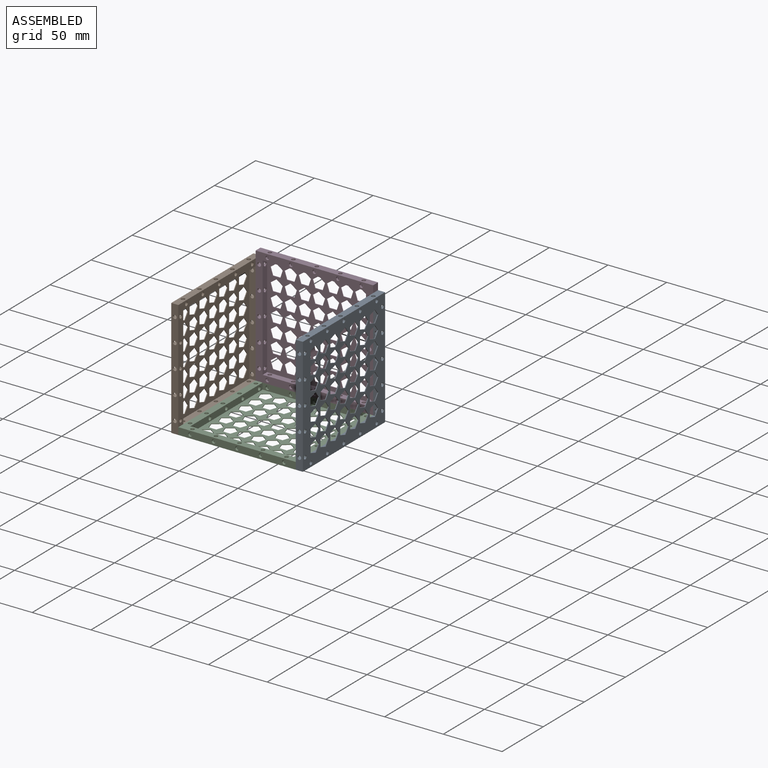
[diagram: assembled view]
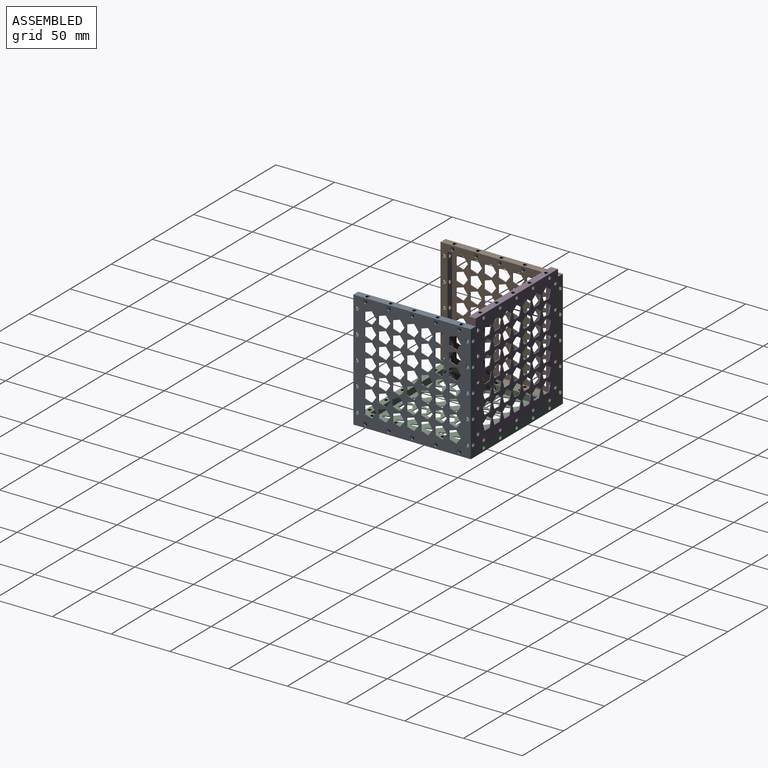
[diagram: assembled view, second angle]
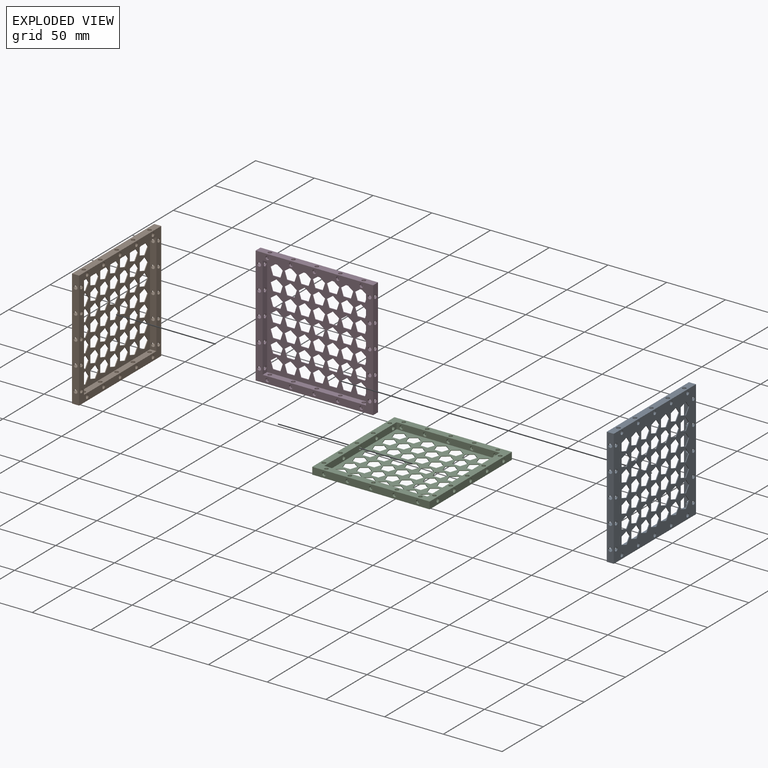
[diagram: exploded view]
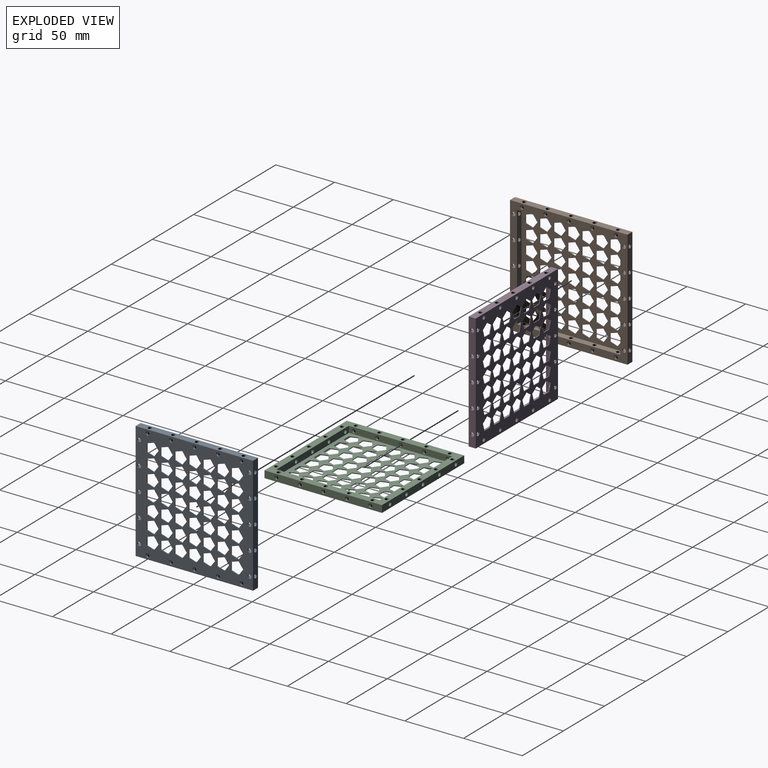
[diagram: exploded view, second angle]
ASSEMBLY  parts=4 mates=3
PART A: 336 faces, bbox 100x100x6 mm
  f0: plane 100x100mm, normal (0,0,-1), area 6234.6mm2, adj f32,f33,f34,f35,f41,f42,f43,f44
  f1: plane 100x100mm, normal (0,0,1), area 2095.2mm2, adj f32,f33,f34,f35,f36,f37,f38,f39
  f2: cylinder r=1.6mm len=3.2mm, axis (1,0,0), area 19.9mm2, adj f35,f334,f335
  f3: cylinder r=1.6mm len=3.2mm, axis (1,0,0), area 19.9mm2, adj f35,f332,f333
  f4: cylinder r=1.6mm len=3.2mm, axis (1,0,0), area 19.9mm2, adj f35,f330,f331
  f5: cylinder r=1.6mm len=3.2mm, axis (1,0,0), area 19.9mm2, adj f35,f328,f329
  f6: cylinder r=1.6mm len=3.2mm, axis (1,0,0), area 19.9mm2, adj f35,f326,f327
  f7: cylinder r=1.6mm len=3.2mm, axis (1,0,0), area 19.9mm2, adj f33,f324,f325
  f8: cylinder r=1.6mm len=3.2mm, axis (1,0,0), area 19.9mm2, adj f37,f324,f325
  f9: cylinder r=1.6mm len=3.2mm, axis (1,0,0), area 19.9mm2, adj f33,f322,f323
  f10: cylinder r=1.6mm len=3.2mm, axis (1,0,0), area 19.9mm2, adj f37,f322,f323
  f11: cylinder r=1.6mm len=3.2mm, axis (1,0,0), area 19.9mm2, adj f33,f320,f321
  f12: cylinder r=1.6mm len=3.2mm, axis (1,0,0), area 19.9mm2, adj f37,f320,f321
  f13: cylinder r=1.6mm len=3.2mm, axis (1,0,0), area 19.9mm2, adj f33,f318,f319
  f14: cylinder r=1.6mm len=3.2mm, axis (1,0,0), area 19.9mm2, adj f37,f318,f319
  f15: cylinder r=1.6mm len=3.2mm, axis (1,0,0), area 19.9mm2, adj f33,f316,f317
  f16: cylinder r=1.6mm len=3.2mm, axis (1,0,0), area 19.9mm2, adj f37,f316,f317
  f17: cylinder r=1.6mm len=3.2mm, axis (0,-1,0), area 19.9mm2, adj f32,f314,f315
  f18: cylinder r=1.6mm len=3.2mm, axis (0,-1,0), area 19.9mm2, adj f38,f314,f315
  f19: cylinder r=1.6mm len=3.2mm, axis (0,-1,0), area 19.9mm2, adj f32,f312,f313
  f20: cylinder r=1.6mm len=3.2mm, axis (0,-1,0), area 19.9mm2, adj f38,f312,f313
  f21: cylinder r=1.6mm len=3.2mm, axis (0,-1,0), area 19.9mm2, adj f32,f310,f311
  f22: cylinder r=1.6mm len=3.2mm, axis (0,-1,0), area 19.9mm2, adj f38,f310,f311
  f23: cylinder r=1.6mm len=3.2mm, axis (0,-1,0), area 19.9mm2, adj f32,f308,f309
  f24: cylinder r=1.6mm len=3.2mm, axis (0,-1,0), area 19.9mm2, adj f38,f308,f309
  f25: cylinder r=1.6mm len=3.2mm, axis (0,-1,0), area 19.9mm2, adj f32,f306,f307
  f26: cylinder r=1.6mm len=3.2mm, axis (0,-1,0), area 19.9mm2, adj f38,f306,f307
  f27: cylinder r=1.6mm len=3.2mm, axis (0,-1,0), area 19.9mm2, adj f34,f304,f305
  f28: cylinder r=1.6mm len=3.2mm, axis (0,-1,0), area 19.9mm2, adj f34,f302,f303
  f29: cylinder r=1.6mm len=3.2mm, axis (0,-1,0), area 19.9mm2, adj f34,f300,f301
  f30: cylinder r=1.6mm len=3.2mm, axis (0,-1,0), area 19.9mm2, adj f34,f298,f299
  f31: cylinder r=1.6mm len=3.2mm, axis (0,-1,0), area 19.9mm2, adj f34,f296,f297
  f32: plane 100x6mm, normal (0,1,0), area 559.8mm2, adj f0,f1,f17,f19,f21,f23,f25,f33
  f33: plane 100x6mm, normal (-1,0,0), area 559.8mm2, adj f0,f1,f7,f9,f11,f13,f15,f32
  f34: plane 100x6mm, normal (0,-1,0), area 559.8mm2, adj f0,f1,f27,f28,f29,f30,f31,f33
  f35: plane 100x6mm, normal (1,0,0), area 559.8mm2, adj f0,f1,f2,f3,f4,f5,f6,f32
  f36: plane 88x5.4mm, normal (0,1,0), area 435mm2, adj f1,f37,f39,f40,f291,f292,f293,f294
  f37: plane 88x5.4mm, normal (1,0,0), area 435mm2, adj f1,f8,f10,f12,f14,f16,f36,f38
  f38: plane 88x5.4mm, normal (0,-1,0), area 435mm2, adj f1,f18,f20,f22,f24,f26,f37,f39
  f39: plane 88x5.4mm, normal (-1,0,0), area 435mm2, adj f1,f36,f38,f40,f286,f287,f288,f289
  f40: plane 88x88mm, normal (0,0,1), area 4139.4mm2, adj f36,f37,f38,f39,f41,f42,f43,f44
  f41: plane 6.22x2.02mm, normal (-0.95,0.31,0), area 3.9mm2, adj f0,f40,f42,f45
  f42: plane 5.29x3.84mm, normal (-0.59,-0.81,0), area 3.9mm2, adj f0,f40,f41,f43
  f43: plane 5.29x3.84mm, normal (0.59,-0.81,0), area 3.9mm2, adj f0,f40,f42,f44
  f44: plane 6.22x2.02mm, normal (0.95,0.31,0), area 3.9mm2, adj f0,f40,f43,f45
  f45: plane 6.54x0.6mm, normal (0,1,0), area 3.9mm2, adj f0,f40,f41,f44
  f46: plane 5.29x3.84mm, normal (-0.59,-0.81,0), area 3.9mm2, adj f0,f40,f47,f50
  f47: plane 5.29x3.84mm, normal (0.59,-0.81,0), area 3.9mm2, adj f0,f40,f46,f48
  f48: plane 6.22x2.02mm, normal (0.95,0.31,0), area 3.9mm2, adj f0,f40,f47,f49
  f49: plane 6.54x0.6mm, normal (0,1,0), area 3.9mm2, adj f0,f40,f48,f50
  f50: plane 6.22x2.02mm, normal (-0.95,0.31,0), area 3.9mm2, adj f0,f40,f46,f49
  f51: plane 5.29x3.84mm, normal (-0.59,-0.81,0), area 3.9mm2, adj f0,f40,f52,f55
  f52: plane 5.29x3.84mm, normal (0.59,-0.81,0), area 3.9mm2, adj f0,f40,f51,f53
  f53: plane 6.22x2.02mm, normal (0.95,0.31,0), area 3.9mm2, adj f0,f40,f52,f54
  f54: plane 6.54x0.6mm, normal (0,1,0), area 3.9mm2, adj f0,f40,f53,f55
  f55: plane 6.22x2.02mm, normal (-0.95,0.31,0), area 3.9mm2, adj f0,f40,f51,f54
  f56: plane 5.29x3.84mm, normal (-0.59,-0.81,0), area 3.9mm2, adj f0,f40,f57,f60
  f57: plane 5.29x3.84mm, normal (0.59,-0.81,0), area 3.9mm2, adj f0,f40,f56,f58
  f58: plane 6.22x2.02mm, normal (0.95,0.31,0), area 3.9mm2, adj f0,f40,f57,f59
  f59: plane 6.54x0.6mm, normal (0,1,0), area 3.9mm2, adj f0,f40,f58,f60
  f60: plane 6.22x2.02mm, normal (-0.95,0.31,0), area 3.9mm2, adj f0,f40,f56,f59
  f61: plane 5.29x3.84mm, normal (-0.59,-0.81,0), area 3.9mm2, adj f0,f40,f62,f65
  f62: plane 5.29x3.84mm, normal (0.59,-0.81,0), area 3.9mm2, adj f0,f40,f61,f63
  f63: plane 6.22x2.02mm, normal (0.95,0.31,0), area 3.9mm2, adj f0,f40,f62,f64
  f64: plane 6.54x0.6mm, normal (0,1,0), area 3.9mm2, adj f0,f40,f63,f65
  f65: plane 6.22x2.02mm, normal (-0.95,0.31,0), area 3.9mm2, adj f0,f40,f61,f64
  f66: plane 5.29x3.84mm, normal (-0.59,-0.81,0), area 3.9mm2, adj f0,f40,f67,f70
  f67: plane 5.29x3.84mm, normal (0.59,-0.81,0), area 3.9mm2, adj f0,f40,f66,f68
  f68: plane 6.22x2.02mm, normal (0.95,0.31,0), area 3.9mm2, adj f0,f40,f67,f69
  f69: plane 6.54x0.6mm, normal (0,1,0), area 3.9mm2, adj f0,f40,f68,f70
  f70: plane 6.22x2.02mm, normal (-0.95,0.31,0), area 3.9mm2, adj f0,f40,f66,f69
  f71: plane 5.29x3.84mm, normal (-0.59,-0.81,0), area 3.9mm2, adj f0,f40,f72,f75
  f72: plane 5.29x3.84mm, normal (0.59,-0.81,0), area 3.9mm2, adj f0,f40,f71,f73
  f73: plane 6.22x2.02mm, normal (0.95,0.31,0), area 3.9mm2, adj f0,f40,f72,f74
  f74: plane 6.54x0.6mm, normal (0,1,0), area 3.9mm2, adj f0,f40,f73,f75
  f75: plane 6.22x2.02mm, normal (-0.95,0.31,0), area 3.9mm2, adj f0,f40,f71,f74
  f76: plane 5.29x3.84mm, normal (-0.59,-0.81,0), area 3.9mm2, adj f0,f40,f77,f80
  f77: plane 5.29x3.84mm, normal (0.59,-0.81,0), area 3.9mm2, adj f0,f40,f76,f78
  f78: plane 6.22x2.02mm, normal (0.95,0.31,0), area 3.9mm2, adj f0,f40,f77,f79
  f79: plane 6.54x0.6mm, normal (0,1,0), area 3.9mm2, adj f0,f40,f78,f80
  f80: plane 6.22x2.02mm, normal (-0.95,0.31,0), area 3.9mm2, adj f0,f40,f76,f79
  f81: plane 5.29x3.84mm, normal (-0.59,-0.81,0), area 3.9mm2, adj f0,f40,f82,f85
  f82: plane 5.29x3.84mm, normal (0.59,-0.81,0), area 3.9mm2, adj f0,f40,f81,f83
  f83: plane 6.22x2.02mm, normal (0.95,0.31,0), area 3.9mm2, adj f0,f40,f82,f84
  f84: plane 6.54x0.6mm, normal (0,1,0), area 3.9mm2, adj f0,f40,f83,f85
  f85: plane 6.22x2.02mm, normal (-0.95,0.31,0), area 3.9mm2, adj f0,f40,f81,f84
  f86: plane 5.29x3.84mm, normal (-0.59,-0.81,0), area 3.9mm2, adj f0,f40,f87,f90
  f87: plane 5.29x3.84mm, normal (0.59,-0.81,0), area 3.9mm2, adj f0,f40,f86,f88
  f88: plane 6.22x2.02mm, normal (0.95,0.31,0), area 3.9mm2, adj f0,f40,f87,f89
  f89: plane 6.54x0.6mm, normal (0,1,0), area 3.9mm2, adj f0,f40,f88,f90
  f90: plane 6.22x2.02mm, normal (-0.95,0.31,0), area 3.9mm2, adj f0,f40,f86,f89
  f91: plane 5.29x3.84mm, normal (-0.59,-0.81,0), area 3.9mm2, adj f0,f40,f92,f95
  f92: plane 5.29x3.84mm, normal (0.59,-0.81,0), area 3.9mm2, adj f0,f40,f91,f93
  f93: plane 6.22x2.02mm, normal (0.95,0.31,0), area 3.9mm2, adj f0,f40,f92,f94
  f94: plane 6.54x0.6mm, normal (0,1,0), area 3.9mm2, adj f0,f40,f93,f95
  f95: plane 6.22x2.02mm, normal (-0.95,0.31,0), area 3.9mm2, adj f0,f40,f91,f94
  f96: plane 5.29x3.84mm, normal (-0.59,-0.81,0), area 3.9mm2, adj f0,f40,f97,f100
  f97: plane 5.29x3.84mm, normal (0.59,-0.81,0), area 3.9mm2, adj f0,f40,f96,f98
  f98: plane 6.22x2.02mm, normal (0.95,0.31,0), area 3.9mm2, adj f0,f40,f97,f99
  f99: plane 6.54x0.6mm, normal (0,1,0), area 3.9mm2, adj f0,f40,f98,f100
  f100: plane 6.22x2.02mm, normal (-0.95,0.31,0), area 3.9mm2, adj f0,f40,f96,f99
  f101: plane 5.29x3.84mm, normal (-0.59,-0.81,0), area 3.9mm2, adj f0,f40,f102,f105
  f102: plane 5.29x3.84mm, normal (0.59,-0.81,0), area 3.9mm2, adj f0,f40,f101,f103
  f103: plane 6.22x2.02mm, normal (0.95,0.31,0), area 3.9mm2, adj f0,f40,f102,f104
  f104: plane 6.54x0.6mm, normal (0,1,0), area 3.9mm2, adj f0,f40,f103,f105
  f105: plane 6.22x2.02mm, normal (-0.95,0.31,0), area 3.9mm2, adj f0,f40,f101,f104
  f106: plane 5.29x3.84mm, normal (-0.59,-0.81,0), area 3.9mm2, adj f0,f40,f107,f110
  f107: plane 5.29x3.84mm, normal (0.59,-0.81,0), area 3.9mm2, adj f0,f40,f106,f108
  f108: plane 6.22x2.02mm, normal (0.95,0.31,0), area 3.9mm2, adj f0,f40,f107,f109
  f109: plane 6.54x0.6mm, normal (0,1,0), area 3.9mm2, adj f0,f40,f108,f110
  f110: plane 6.22x2.02mm, normal (-0.95,0.31,0), area 3.9mm2, adj f0,f40,f106,f109
  f111: plane 5.29x3.84mm, normal (-0.59,-0.81,0), area 3.9mm2, adj f0,f40,f112,f115
  f112: plane 5.29x3.84mm, normal (0.59,-0.81,0), area 3.9mm2, adj f0,f40,f111,f113
  f113: plane 6.22x2.02mm, normal (0.95,0.31,0), area 3.9mm2, adj f0,f40,f112,f114
  f114: plane 6.54x0.6mm, normal (0,1,0), area 3.9mm2, adj f0,f40,f113,f115
  f115: plane 6.22x2.02mm, normal (-0.95,0.31,0), area 3.9mm2, adj f0,f40,f111,f114
  f116: plane 5.29x3.84mm, normal (-0.59,-0.81,0), area 3.9mm2, adj f0,f40,f117,f120
  f117: plane 5.29x3.84mm, normal (0.59,-0.81,0), area 3.9mm2, adj f0,f40,f116,f118
  f118: plane 6.22x2.02mm, normal (0.95,0.31,0), area 3.9mm2, adj f0,f40,f117,f119
  f119: plane 6.54x0.6mm, normal (0,1,0), area 3.9mm2, adj f0,f40,f118,f120
  f120: plane 6.22x2.02mm, normal (-0.95,0.31,0), area 3.9mm2, adj f0,f40,f116,f119
  f121: plane 5.29x3.84mm, normal (-0.59,-0.81,0), area 3.9mm2, adj f0,f40,f122,f125
  f122: plane 5.29x3.84mm, normal (0.59,-0.81,0), area 3.9mm2, adj f0,f40,f121,f123
  f123: plane 6.22x2.02mm, normal (0.95,0.31,0), area 3.9mm2, adj f0,f40,f122,f124
  f124: plane 6.54x0.6mm, normal (0,1,0), area 3.9mm2, adj f0,f40,f123,f125
  f125: plane 6.22x2.02mm, normal (-0.95,0.31,0), area 3.9mm2, adj f0,f40,f121,f124
  f126: plane 5.29x3.84mm, normal (-0.59,-0.81,0), area 3.9mm2, adj f0,f40,f127,f130
  f127: plane 5.29x3.84mm, normal (0.59,-0.81,0), area 3.9mm2, adj f0,f40,f126,f128
  f128: plane 6.22x2.02mm, normal (0.95,0.31,0), area 3.9mm2, adj f0,f40,f127,f129
  f129: plane 6.54x0.6mm, normal (0,1,0), area 3.9mm2, adj f0,f40,f128,f130
  f130: plane 6.22x2.02mm, normal (-0.95,0.31,0), area 3.9mm2, adj f0,f40,f126,f129
  f131: plane 5.29x3.84mm, normal (-0.59,-0.81,0), area 3.9mm2, adj f0,f40,f132,f135
  f132: plane 5.29x3.84mm, normal (0.59,-0.81,0), area 3.9mm2, adj f0,f40,f131,f133
  f133: plane 6.22x2.02mm, normal (0.95,0.31,0), area 3.9mm2, adj f0,f40,f132,f134
  f134: plane 6.54x0.6mm, normal (0,1,0), area 3.9mm2, adj f0,f40,f133,f135
  f135: plane 6.22x2.02mm, normal (-0.95,0.31,0), area 3.9mm2, adj f0,f40,f131,f134
  f136: plane 5.29x3.84mm, normal (-0.59,-0.81,0), area 3.9mm2, adj f0,f40,f137,f140
  f137: plane 5.29x3.84mm, normal (0.59,-0.81,0), area 3.9mm2, adj f0,f40,f136,f138
  f138: plane 6.22x2.02mm, normal (0.95,0.31,0), area 3.9mm2, adj f0,f40,f137,f139
  f139: plane 6.54x0.6mm, normal (0,1,0), area 3.9mm2, adj f0,f40,f138,f140
  f140: plane 6.22x2.02mm, normal (-0.95,0.31,0), area 3.9mm2, adj f0,f40,f136,f139
  f141: plane 5.29x3.84mm, normal (-0.59,-0.81,0), area 3.9mm2, adj f0,f40,f142,f145
  f142: plane 5.29x3.84mm, normal (0.59,-0.81,0), area 3.9mm2, adj f0,f40,f141,f143
  f143: plane 6.22x2.02mm, normal (0.95,0.31,0), area 3.9mm2, adj f0,f40,f142,f144
  f144: plane 6.54x0.6mm, normal (0,1,0), area 3.9mm2, adj f0,f40,f143,f145
  f145: plane 6.22x2.02mm, normal (-0.95,0.31,0), area 3.9mm2, adj f0,f40,f141,f144
  f146: plane 5.29x3.84mm, normal (-0.59,-0.81,0), area 3.9mm2, adj f0,f40,f147,f150
  f147: plane 5.29x3.84mm, normal (0.59,-0.81,0), area 3.9mm2, adj f0,f40,f146,f148
  f148: plane 6.22x2.02mm, normal (0.95,0.31,0), area 3.9mm2, adj f0,f40,f147,f149
  f149: plane 6.54x0.6mm, normal (0,1,0), area 3.9mm2, adj f0,f40,f148,f150
  f150: plane 6.22x2.02mm, normal (-0.95,0.31,0), area 3.9mm2, adj f0,f40,f146,f149
  f151: plane 5.29x3.84mm, normal (-0.59,-0.81,0), area 3.9mm2, adj f0,f40,f152,f155
  f152: plane 5.29x3.84mm, normal (0.59,-0.81,0), area 3.9mm2, adj f0,f40,f151,f153
  f153: plane 6.22x2.02mm, normal (0.95,0.31,0), area 3.9mm2, adj f0,f40,f152,f154
  f154: plane 6.54x0.6mm, normal (0,1,0), area 3.9mm2, adj f0,f40,f153,f155
  f155: plane 6.22x2.02mm, normal (-0.95,0.31,0), area 3.9mm2, adj f0,f40,f151,f154
  f156: plane 5.29x3.84mm, normal (-0.59,-0.81,0), area 3.9mm2, adj f0,f40,f157,f160
  f157: plane 5.29x3.84mm, normal (0.59,-0.81,0), area 3.9mm2, adj f0,f40,f156,f158
  f158: plane 6.22x2.02mm, normal (0.95,0.31,0), area 3.9mm2, adj f0,f40,f157,f159
  f159: plane 6.54x0.6mm, normal (0,1,0), area 3.9mm2, adj f0,f40,f158,f160
  f160: plane 6.22x2.02mm, normal (-0.95,0.31,0), area 3.9mm2, adj f0,f40,f156,f159
  f161: plane 5.29x3.84mm, normal (-0.59,-0.81,0), area 3.9mm2, adj f0,f40,f162,f165
  f162: plane 5.29x3.84mm, normal (0.59,-0.81,0), area 3.9mm2, adj f0,f40,f161,f163
  f163: plane 6.22x2.02mm, normal (0.95,0.31,0), area 3.9mm2, adj f0,f40,f162,f164
  f164: plane 6.54x0.6mm, normal (0,1,0), area 3.9mm2, adj f0,f40,f163,f165
  f165: plane 6.22x2.02mm, normal (-0.95,0.31,0), area 3.9mm2, adj f0,f40,f161,f164
  f166: plane 5.29x3.84mm, normal (-0.59,-0.81,0), area 3.9mm2, adj f0,f40,f167,f170
  f167: plane 5.29x3.84mm, normal (0.59,-0.81,0), area 3.9mm2, adj f0,f40,f166,f168
  f168: plane 6.22x2.02mm, normal (0.95,0.31,0), area 3.9mm2, adj f0,f40,f167,f169
  f169: plane 6.54x0.6mm, normal (0,1,0), area 3.9mm2, adj f0,f40,f168,f170
  f170: plane 6.22x2.02mm, normal (-0.95,0.31,0), area 3.9mm2, adj f0,f40,f166,f169
  f171: plane 5.29x3.84mm, normal (-0.59,-0.81,0), area 3.9mm2, adj f0,f40,f172,f175
  f172: plane 5.29x3.84mm, normal (0.59,-0.81,0), area 3.9mm2, adj f0,f40,f171,f173
  f173: plane 6.22x2.02mm, normal (0.95,0.31,0), area 3.9mm2, adj f0,f40,f172,f174
  f174: plane 6.54x0.6mm, normal (0,1,0), area 3.9mm2, adj f0,f40,f173,f175
  f175: plane 6.22x2.02mm, normal (-0.95,0.31,0), area 3.9mm2, adj f0,f40,f171,f174
  f176: plane 5.29x3.84mm, normal (-0.59,-0.81,0), area 3.9mm2, adj f0,f40,f177,f180
  f177: plane 5.29x3.84mm, normal (0.59,-0.81,0), area 3.9mm2, adj f0,f40,f176,f178
  f178: plane 6.22x2.02mm, normal (0.95,0.31,0), area 3.9mm2, adj f0,f40,f177,f179
  f179: plane 6.54x0.6mm, normal (0,1,0), area 3.9mm2, adj f0,f40,f178,f180
  f180: plane 6.22x2.02mm, normal (-0.95,0.31,0), area 3.9mm2, adj f0,f40,f176,f179
  f181: plane 5.29x3.84mm, normal (-0.59,-0.81,0), area 3.9mm2, adj f0,f40,f182,f185
  f182: plane 5.29x3.84mm, normal (0.59,-0.81,0), area 3.9mm2, adj f0,f40,f181,f183
  f183: plane 6.22x2.02mm, normal (0.95,0.31,0), area 3.9mm2, adj f0,f40,f182,f184
  f184: plane 6.54x0.6mm, normal (0,1,0), area 3.9mm2, adj f0,f40,f183,f185
  f185: plane 6.22x2.02mm, normal (-0.95,0.31,0), area 3.9mm2, adj f0,f40,f181,f184
  f186: plane 5.29x3.84mm, normal (-0.59,-0.81,0), area 3.9mm2, adj f0,f40,f187,f190
  f187: plane 5.29x3.84mm, normal (0.59,-0.81,0), area 3.9mm2, adj f0,f40,f186,f188
  f188: plane 6.22x2.02mm, normal (0.95,0.31,0), area 3.9mm2, adj f0,f40,f187,f189
  f189: plane 6.54x0.6mm, normal (0,1,0), area 3.9mm2, adj f0,f40,f188,f190
  f190: plane 6.22x2.02mm, normal (-0.95,0.31,0), area 3.9mm2, adj f0,f40,f186,f189
  f191: plane 5.29x3.84mm, normal (-0.59,-0.81,0), area 3.9mm2, adj f0,f40,f192,f195
  f192: plane 5.29x3.84mm, normal (0.59,-0.81,0), area 3.9mm2, adj f0,f40,f191,f193
  f193: plane 6.22x2.02mm, normal (0.95,0.31,0), area 3.9mm2, adj f0,f40,f192,f194
  f194: plane 6.54x0.6mm, normal (0,1,0), area 3.9mm2, adj f0,f40,f193,f195
  f195: plane 6.22x2.02mm, normal (-0.95,0.31,0), area 3.9mm2, adj f0,f40,f191,f194
  f196: plane 5.29x3.84mm, normal (-0.59,-0.81,0), area 3.9mm2, adj f0,f40,f197,f200
  f197: plane 5.29x3.84mm, normal (0.59,-0.81,0), area 3.9mm2, adj f0,f40,f196,f198
  f198: plane 6.22x2.02mm, normal (0.95,0.31,0), area 3.9mm2, adj f0,f40,f197,f199
  f199: plane 6.54x0.6mm, normal (0,1,0), area 3.9mm2, adj f0,f40,f198,f200
  f200: plane 6.22x2.02mm, normal (-0.95,0.31,0), area 3.9mm2, adj f0,f40,f196,f199
  f201: plane 5.29x3.84mm, normal (-0.59,-0.81,0), area 3.9mm2, adj f0,f40,f202,f205
  f202: plane 5.29x3.84mm, normal (0.59,-0.81,0), area 3.9mm2, adj f0,f40,f201,f203
  f203: plane 6.22x2.02mm, normal (0.95,0.31,0), area 3.9mm2, adj f0,f40,f202,f204
  f204: plane 6.54x0.6mm, normal (0,1,0), area 3.9mm2, adj f0,f40,f203,f205
  f205: plane 6.22x2.02mm, normal (-0.95,0.31,0), area 3.9mm2, adj f0,f40,f201,f204
  f206: plane 5.29x3.84mm, normal (-0.59,-0.81,0), area 3.9mm2, adj f0,f40,f207,f210
  f207: plane 5.29x3.84mm, normal (0.59,-0.81,0), area 3.9mm2, adj f0,f40,f206,f208
  f208: plane 6.22x2.02mm, normal (0.95,0.31,0), area 3.9mm2, adj f0,f40,f207,f209
  f209: plane 6.54x0.6mm, normal (0,1,0), area 3.9mm2, adj f0,f40,f208,f210
  f210: plane 6.22x2.02mm, normal (-0.95,0.31,0), area 3.9mm2, adj f0,f40,f206,f209
  f211: plane 5.29x3.84mm, normal (-0.59,-0.81,0), area 3.9mm2, adj f0,f40,f212,f215
  f212: plane 5.29x3.84mm, normal (0.59,-0.81,0), area 3.9mm2, adj f0,f40,f211,f213
  f213: plane 6.22x2.02mm, normal (0.95,0.31,0), area 3.9mm2, adj f0,f40,f212,f214
  f214: plane 6.54x0.6mm, normal (0,1,0), area 3.9mm2, adj f0,f40,f213,f215
  f215: plane 6.22x2.02mm, normal (-0.95,0.31,0), area 3.9mm2, adj f0,f40,f211,f214
  f216: plane 5.29x3.84mm, normal (-0.59,-0.81,0), area 3.9mm2, adj f0,f40,f217,f220
  f217: plane 5.29x3.84mm, normal (0.59,-0.81,0), area 3.9mm2, adj f0,f40,f216,f218
  f218: plane 6.22x2.02mm, normal (0.95,0.31,0), area 3.9mm2, adj f0,f40,f217,f219
  f219: plane 6.54x0.6mm, normal (0,1,0), area 3.9mm2, adj f0,f40,f218,f220
  f220: plane 6.22x2.02mm, normal (-0.95,0.31,0), area 3.9mm2, adj f0,f40,f216,f219
  f221: plane 5.29x3.84mm, normal (-0.59,-0.81,0), area 3.9mm2, adj f0,f40,f222,f225
  f222: plane 5.29x3.84mm, normal (0.59,-0.81,0), area 3.9mm2, adj f0,f40,f221,f223
  f223: plane 6.22x2.02mm, normal (0.95,0.31,0), area 3.9mm2, adj f0,f40,f222,f224
  f224: plane 6.54x0.6mm, normal (0,1,0), area 3.9mm2, adj f0,f40,f223,f225
  f225: plane 6.22x2.02mm, normal (-0.95,0.31,0), area 3.9mm2, adj f0,f40,f221,f224
  f226: plane 5.29x3.84mm, normal (-0.59,-0.81,0), area 3.9mm2, adj f0,f40,f227,f230
  f227: plane 5.29x3.84mm, normal (0.59,-0.81,0), area 3.9mm2, adj f0,f40,f226,f228
  f228: plane 6.22x2.02mm, normal (0.95,0.31,0), area 3.9mm2, adj f0,f40,f227,f229
  f229: plane 6.54x0.6mm, normal (0,1,0), area 3.9mm2, adj f0,f40,f228,f230
  f230: plane 6.22x2.02mm, normal (-0.95,0.31,0), area 3.9mm2, adj f0,f40,f226,f229
  f231: plane 5.29x3.84mm, normal (-0.59,-0.81,0), area 3.9mm2, adj f0,f40,f232,f235
  f232: plane 5.29x3.84mm, normal (0.59,-0.81,0), area 3.9mm2, adj f0,f40,f231,f233
  f233: plane 6.22x2.02mm, normal (0.95,0.31,0), area 3.9mm2, adj f0,f40,f232,f234
  f234: plane 6.54x0.6mm, normal (0,1,0), area 3.9mm2, adj f0,f40,f233,f235
  f235: plane 6.22x2.02mm, normal (-0.95,0.31,0), area 3.9mm2, adj f0,f40,f231,f234
  f236: plane 5.29x3.84mm, normal (-0.59,-0.81,0), area 3.9mm2, adj f0,f40,f237,f240
  f237: plane 5.29x3.84mm, normal (0.59,-0.81,0), area 3.9mm2, adj f0,f40,f236,f238
  f238: plane 6.22x2.02mm, normal (0.95,0.31,0), area 3.9mm2, adj f0,f40,f237,f239
  f239: plane 6.54x0.6mm, normal (0,1,0), area 3.9mm2, adj f0,f40,f238,f240
  f240: plane 6.22x2.02mm, normal (-0.95,0.31,0), area 3.9mm2, adj f0,f40,f236,f239
  f241: plane 5.29x3.84mm, normal (-0.59,-0.81,0), area 3.9mm2, adj f0,f40,f242,f245
  f242: plane 5.29x3.84mm, normal (0.59,-0.81,0), area 3.9mm2, adj f0,f40,f241,f243
  f243: plane 6.22x2.02mm, normal (0.95,0.31,0), area 3.9mm2, adj f0,f40,f242,f244
  f244: plane 6.54x0.6mm, normal (0,1,0), area 3.9mm2, adj f0,f40,f243,f245
  f245: plane 6.22x2.02mm, normal (-0.95,0.31,0), area 3.9mm2, adj f0,f40,f241,f244
  f246: plane 5.29x3.84mm, normal (-0.59,-0.81,0), area 3.9mm2, adj f0,f40,f247,f250
  f247: plane 5.29x3.84mm, normal (0.59,-0.81,0), area 3.9mm2, adj f0,f40,f246,f248
  f248: plane 6.22x2.02mm, normal (0.95,0.31,0), area 3.9mm2, adj f0,f40,f247,f249
  f249: plane 6.54x0.6mm, normal (0,1,0), area 3.9mm2, adj f0,f40,f248,f250
  f250: plane 6.22x2.02mm, normal (-0.95,0.31,0), area 3.9mm2, adj f0,f40,f246,f249
  f251: plane 5.29x3.84mm, normal (-0.59,-0.81,0), area 3.9mm2, adj f0,f40,f252,f255
  f252: plane 5.29x3.84mm, normal (0.59,-0.81,0), area 3.9mm2, adj f0,f40,f251,f253
  f253: plane 6.22x2.02mm, normal (0.95,0.31,0), area 3.9mm2, adj f0,f40,f252,f254
  f254: plane 6.54x0.6mm, normal (0,1,0), area 3.9mm2, adj f0,f40,f253,f255
  f255: plane 6.22x2.02mm, normal (-0.95,0.31,0), area 3.9mm2, adj f0,f40,f251,f254
  f256: plane 5.29x3.84mm, normal (-0.59,-0.81,0), area 3.9mm2, adj f0,f40,f257,f260
  f257: plane 5.29x3.84mm, normal (0.59,-0.81,0), area 3.9mm2, adj f0,f40,f256,f258
  f258: plane 6.22x2.02mm, normal (0.95,0.31,0), area 3.9mm2, adj f0,f40,f257,f259
  f259: plane 6.54x0.6mm, normal (0,1,0), area 3.9mm2, adj f0,f40,f258,f260
  f260: plane 6.22x2.02mm, normal (-0.95,0.31,0), area 3.9mm2, adj f0,f40,f256,f259
  f261: plane 5.29x3.84mm, normal (-0.59,-0.81,0), area 3.9mm2, adj f0,f40,f262,f265
  f262: plane 5.29x3.84mm, normal (0.59,-0.81,0), area 3.9mm2, adj f0,f40,f261,f263
  f263: plane 6.22x2.02mm, normal (0.95,0.31,0), area 3.9mm2, adj f0,f40,f262,f264
  f264: plane 6.54x0.6mm, normal (0,1,0), area 3.9mm2, adj f0,f40,f263,f265
  f265: plane 6.22x2.02mm, normal (-0.95,0.31,0), area 3.9mm2, adj f0,f40,f261,f264
  f266: plane 5.29x3.84mm, normal (-0.59,-0.81,0), area 3.9mm2, adj f0,f40,f267,f270
  f267: plane 5.29x3.84mm, normal (0.59,-0.81,0), area 3.9mm2, adj f0,f40,f266,f268
  f268: plane 6.22x2.02mm, normal (0.95,0.31,0), area 3.9mm2, adj f0,f40,f267,f269
  f269: plane 6.54x0.6mm, normal (0,1,0), area 3.9mm2, adj f0,f40,f268,f270
  f270: plane 6.22x2.02mm, normal (-0.95,0.31,0), area 3.9mm2, adj f0,f40,f266,f269
  f271: plane 5.29x3.84mm, normal (-0.59,-0.81,0), area 3.9mm2, adj f0,f40,f272,f275
  f272: plane 5.29x3.84mm, normal (0.59,-0.81,0), area 3.9mm2, adj f0,f40,f271,f273
  f273: plane 6.22x2.02mm, normal (0.95,0.31,0), area 3.9mm2, adj f0,f40,f272,f274
  f274: plane 6.54x0.6mm, normal (0,1,0), area 3.9mm2, adj f0,f40,f273,f275
  f275: plane 6.22x2.02mm, normal (-0.95,0.31,0), area 3.9mm2, adj f0,f40,f271,f274
  f276: plane 5.29x3.84mm, normal (-0.59,-0.81,0), area 3.9mm2, adj f0,f40,f277,f280
  f277: plane 5.29x3.84mm, normal (0.59,-0.81,0), area 3.9mm2, adj f0,f40,f276,f278
  f278: plane 6.22x2.02mm, normal (0.95,0.31,0), area 3.9mm2, adj f0,f40,f277,f279
  f279: plane 6.54x0.6mm, normal (0,1,0), area 3.9mm2, adj f0,f40,f278,f280
  f280: plane 6.22x2.02mm, normal (-0.95,0.31,0), area 3.9mm2, adj f0,f40,f276,f279
  f281: plane 5.29x3.84mm, normal (-0.59,-0.81,0), area 3.9mm2, adj f0,f40,f282,f285
  f282: plane 5.29x3.84mm, normal (0.59,-0.81,0), area 3.9mm2, adj f0,f40,f281,f283
  f283: plane 6.22x2.02mm, normal (0.95,0.31,0), area 3.9mm2, adj f0,f40,f282,f284
  f284: plane 6.54x0.6mm, normal (0,1,0), area 3.9mm2, adj f0,f40,f283,f285
  f285: plane 6.22x2.02mm, normal (-0.95,0.31,0), area 3.9mm2, adj f0,f40,f281,f284
  f286: cylinder r=1.6mm len=3.2mm, axis (1,0,0), area 19.9mm2, adj f39,f334,f335
  f287: cylinder r=1.6mm len=3.2mm, axis (1,0,0), area 19.9mm2, adj f39,f332,f333
  f288: cylinder r=1.6mm len=3.2mm, axis (1,0,0), area 19.9mm2, adj f39,f330,f331
  f289: cylinder r=1.6mm len=3.2mm, axis (1,0,0), area 19.9mm2, adj f39,f328,f329
  f290: cylinder r=1.6mm len=3.2mm, axis (1,0,0), area 19.9mm2, adj f39,f326,f327
  f291: cylinder r=1.6mm len=3.2mm, axis (0,-1,0), area 19.9mm2, adj f36,f304,f305
  f292: cylinder r=1.6mm len=3.2mm, axis (0,-1,0), area 19.9mm2, adj f36,f302,f303
  f293: cylinder r=1.6mm len=3.2mm, axis (0,-1,0), area 19.9mm2, adj f36,f300,f301
  f294: cylinder r=1.6mm len=3.2mm, axis (0,-1,0), area 19.9mm2, adj f36,f298,f299
  f295: cylinder r=1.6mm len=3.2mm, axis (0,-1,0), area 19.9mm2, adj f36,f296,f297
  f296: cylinder r=1.6mm len=3.2mm, axis (0,0,-1), area 19.9mm2, adj f0,f31,f295
  f297: cylinder r=1.6mm len=3.2mm, axis (0,0,-1), area 19.9mm2, adj f1,f31,f295
  f298: cylinder r=1.6mm len=3.2mm, axis (0,0,-1), area 19.9mm2, adj f0,f30,f294
  f299: cylinder r=1.6mm len=3.2mm, axis (0,0,-1), area 19.9mm2, adj f1,f30,f294
  f300: cylinder r=1.6mm len=3.2mm, axis (0,0,-1), area 19.9mm2, adj f0,f29,f293
  f301: cylinder r=1.6mm len=3.2mm, axis (0,0,-1), area 19.9mm2, adj f1,f29,f293
  f302: cylinder r=1.6mm len=3.2mm, axis (0,0,-1), area 19.9mm2, adj f0,f28,f292
  f303: cylinder r=1.6mm len=3.2mm, axis (0,0,-1), area 19.9mm2, adj f1,f28,f292
  f304: cylinder r=1.6mm len=3.2mm, axis (0,0,-1), area 19.9mm2, adj f0,f27,f291
  f305: cylinder r=1.6mm len=3.2mm, axis (0,0,-1), area 19.9mm2, adj f1,f27,f291
  f306: cylinder r=1.6mm len=3.2mm, axis (0,0,-1), area 19.9mm2, adj f1,f25,f26
  f307: cylinder r=1.6mm len=3.2mm, axis (0,0,-1), area 19.9mm2, adj f0,f25,f26
  f308: cylinder r=1.6mm len=3.2mm, axis (0,0,-1), area 19.9mm2, adj f1,f23,f24
  f309: cylinder r=1.6mm len=3.2mm, axis (0,0,-1), area 19.9mm2, adj f0,f23,f24
  f310: cylinder r=1.6mm len=3.2mm, axis (0,0,-1), area 19.9mm2, adj f1,f21,f22
  f311: cylinder r=1.6mm len=3.2mm, axis (0,0,-1), area 19.9mm2, adj f0,f21,f22
  f312: cylinder r=1.6mm len=3.2mm, axis (0,0,-1), area 19.9mm2, adj f1,f19,f20
  f313: cylinder r=1.6mm len=3.2mm, axis (0,0,-1), area 19.9mm2, adj f0,f19,f20
  f314: cylinder r=1.6mm len=3.2mm, axis (0,0,-1), area 19.9mm2, adj f1,f17,f18
  f315: cylinder r=1.6mm len=3.2mm, axis (0,0,-1), area 19.9mm2, adj f0,f17,f18
  f316: cylinder r=1.6mm len=3.2mm, axis (0,0,-1), area 19.9mm2, adj f1,f15,f16
  f317: cylinder r=1.6mm len=3.2mm, axis (0,0,-1), area 19.9mm2, adj f0,f15,f16
  f318: cylinder r=1.6mm len=3.2mm, axis (0,0,-1), area 19.9mm2, adj f1,f13,f14
  f319: cylinder r=1.6mm len=3.2mm, axis (0,0,-1), area 19.9mm2, adj f0,f13,f14
  f320: cylinder r=1.6mm len=3.2mm, axis (0,0,-1), area 19.9mm2, adj f1,f11,f12
  f321: cylinder r=1.6mm len=3.2mm, axis (0,0,-1), area 19.9mm2, adj f0,f11,f12
  f322: cylinder r=1.6mm len=3.2mm, axis (0,0,-1), area 19.9mm2, adj f1,f9,f10
  f323: cylinder r=1.6mm len=3.2mm, axis (0,0,-1), area 19.9mm2, adj f0,f9,f10
  f324: cylinder r=1.6mm len=3.2mm, axis (0,0,-1), area 19.9mm2, adj f1,f7,f8
  f325: cylinder r=1.6mm len=3.2mm, axis (0,0,-1), area 19.9mm2, adj f0,f7,f8
  f326: cylinder r=1.6mm len=3.2mm, axis (0,0,-1), area 19.9mm2, adj f0,f6,f290
  f327: cylinder r=1.6mm len=3.2mm, axis (0,0,-1), area 19.9mm2, adj f1,f6,f290
  f328: cylinder r=1.6mm len=3.2mm, axis (0,0,-1), area 19.9mm2, adj f0,f5,f289
  f329: cylinder r=1.6mm len=3.2mm, axis (0,0,-1), area 19.9mm2, adj f1,f5,f289
  f330: cylinder r=1.6mm len=3.2mm, axis (0,0,-1), area 19.9mm2, adj f0,f4,f288
  f331: cylinder r=1.6mm len=3.2mm, axis (0,0,-1), area 19.9mm2, adj f1,f4,f288
  f332: cylinder r=1.6mm len=3.2mm, axis (0,0,-1), area 19.9mm2, adj f0,f3,f287
  f333: cylinder r=1.6mm len=3.2mm, axis (0,0,-1), area 19.9mm2, adj f1,f3,f287
  f334: cylinder r=1.6mm len=3.2mm, axis (0,0,-1), area 19.9mm2, adj f0,f2,f286
  f335: cylinder r=1.6mm len=3.2mm, axis (0,0,-1), area 19.9mm2, adj f1,f2,f286
PART B: same geometry as A
PART C: same geometry as A
PART D: same geometry as A
PLACE A rot(axis=(0,-1,0),90deg) t=(24.86,-6.5,89.77)mm
PLACE B rot(axis=(0,1,0),90deg) t=(-87.14,-6.5,89.77)mm
PLACE C t=(-31.14,-6.5,39.77)mm
PLACE D rot(axis=(1,0,0),90deg) t=(-31.14,43.5,95.77)mm
MATE fastened C.f310 <-> D.f21  axis (0,0,-1) through (-31.14,40.5,45.77)mm
MATE fastened C.f2 <-> B.f334  axis (-1,0,0) through (-81.14,33.5,42.77)mm
MATE fastened C.f6 <-> A.f316  axis (1,0,0) through (18.86,-46.5,42.77)mm
